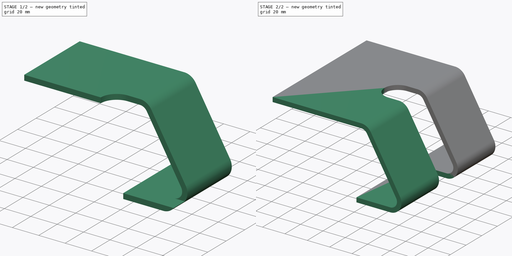
[diagram: build sequence overview — one tinted view per stage of 2, left to right]
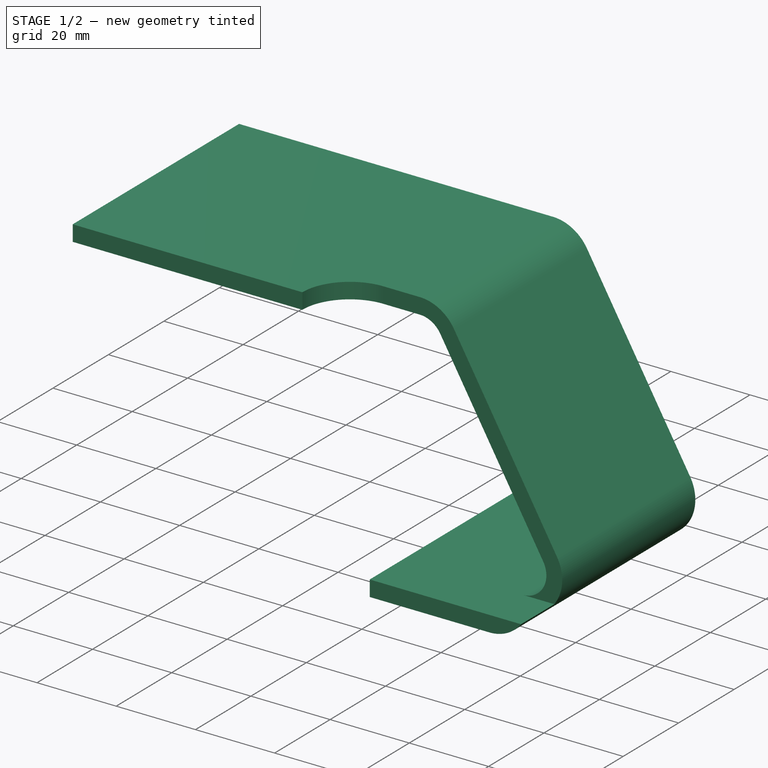
[diagram: stage 1 of 2 — iso view after this stage's code; geometry added in this stage tinted green]
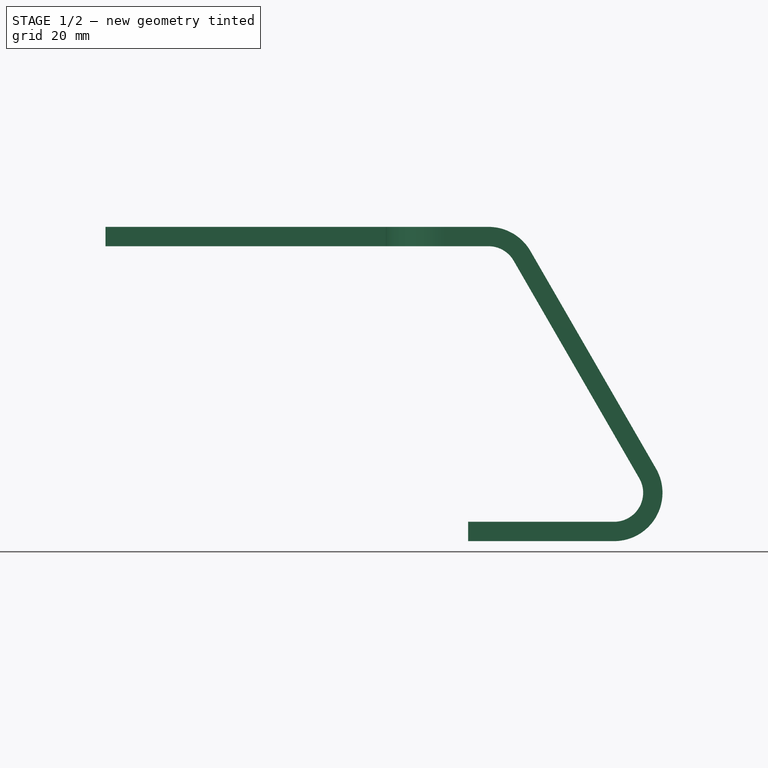
[diagram: stage 1 of 2 — front view after this stage's code; geometry added in this stage tinted green]
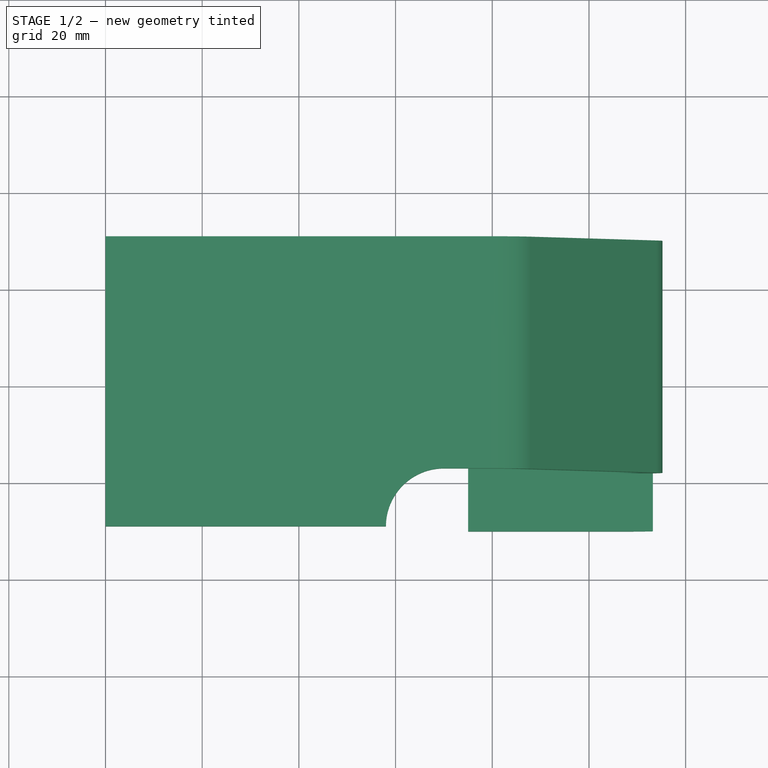
[diagram: stage 1 of 2 — top view after this stage's code; geometry added in this stage tinted green]
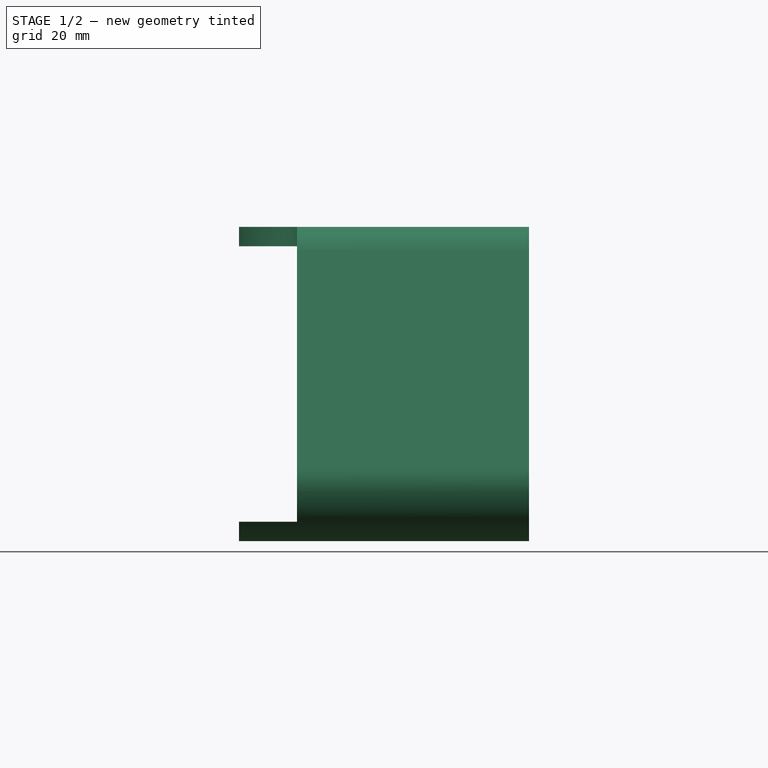
[diagram: stage 1 of 2 — right view after this stage's code; geometry added in this stage tinted green]
FCSTD DOCUMENT  (FreeCAD 1.1R42180 (Git))
Label: 23-T-81_Flared_Bracket
License: Creative Commons Attribution-NonCommercial-ShareAlike 4.0
LicenseURL: https://creativecommons.org/licenses/by-nc-sa/4.0/
objects: Sketcher::SketchObject×5, PartDesign::Pocket×2, App::Point×1, PartDesign::Pad×1, PartDesign::Mirrored×1, PartDesign::Body×1
note: 22 computed .brp shape members not serialized (recipe doc carries the construction recipe); baked Part::Feature solids carry a one-line shape summary decoded from their .brp

FEATURE [App::Point] Origin001  label="Origine"
  Role = Origin
FEATURE [Sketcher::SketchObject] Sketch
  ArcFitTolerance = 1e-06
  AttachmentSupport = -> [Origin]
  ExternalTypes = [0]
  FullyConstrained = true
  MakeInternals = false
  MapMode = 5
  Placement = pos=(0,0,0) rot=(1,0,0;1.5708rad)
  expr: Constraints[17] = 170 / 2
  sketch-geometry (7):
    g0: LineSegment StartX=0 StartY=65 StartZ=0 EndX=79.2265 EndY=65 EndZ=0
    g1: LineSegment StartX=87.8868 StartY=60 StartZ=0 EndX=113.868 EndY=15 EndZ=0
    g2: ArcOfCircle CenterX=105.207 CenterY=10 CenterZ=0 NormalX=0 NormalY=0 NormalZ=1 AngleXU=0 Radius=10 StartAngle=4.71239 EndAngle=6.80678
    g3: LineSegment StartX=0 StartY=65 StartZ=0 EndX=0 EndY=0 EndZ=0
    g4: LineSegment StartX=0 StartY=0 StartZ=0 EndX=105.207 EndY=0 EndZ=0
    g5: ArcOfCircle CenterX=79.2265 CenterY=55 CenterZ=0 NormalX=0 NormalY=0 NormalZ=1 AngleXU=0 Radius=10 StartAngle=0.523599 EndAngle=1.5708
    g6: LineSegment [constr] StartX=0 StartY=65 StartZ=0 EndX=85 EndY=65 EndZ=0
  constraints (18):
    c: PointOnObject(g0,g-2)
    c: Horizontal(g0)
    c: Tangent(g1,g2) = 1.5708
    c: Coincident(g0,g3)
    c: Coincident(g3,g-1)
    c: Coincident(g3,g4)
    c: Horizontal(g4)
    c: Tangent(g4,g2) = -1.5708
    c: Angle(g1,g-1) = 1.0472
    c: Radius(g2) = 10
    c: Tangent(g1,g5) = 1.5708
    c: Tangent(g0,g5) = 1.5708
    c: Equal(g2,g5)
    c: DistanceY(g-1,g0) = 65
    c: Coincident(g6,g0)
    c: PointOnObject(g6,g1)
    c: Horizontal(g6)
    c: DistanceX(g6,g6) = 85
FEATURE [Sketcher::SketchObject] Sketch001
  ArcFitTolerance = 1e-06
  ExternalTypes = [0,0,0,0]
  FullyConstrained = true
  MakeInternals = false
  MapMode = 5
  Placement = pos=(0,-50,0) rot=(1,0,0;1.5708rad)
  expr: Constraints[18] = 150 / 2
  sketch-geometry (8):
    g0: LineSegment StartX=0 StartY=65 StartZ=0 EndX=0 EndY=61 EndZ=0
    g1: LineSegment StartX=0 StartY=61 StartZ=0 EndX=79.2265 EndY=61 EndZ=0
    g2: ArcOfCircle CenterX=79.2265 CenterY=55 CenterZ=0 NormalX=0 NormalY=0 NormalZ=1 AngleXU=0 Radius=6 StartAngle=0.523599 EndAngle=1.5708
    g3: LineSegment StartX=84.4226 StartY=58 StartZ=0 EndX=110.403 EndY=13 EndZ=0
    g4: ArcOfCircle CenterX=105.207 CenterY=10 CenterZ=0 NormalX=0 NormalY=0 NormalZ=1 AngleXU=0 Radius=6 StartAngle=4.71239 EndAngle=6.80678
    g5: LineSegment StartX=105.207 StartY=4 StartZ=0 EndX=75 EndY=4 EndZ=0
    g6: LineSegment StartX=75 StartY=4 StartZ=0 EndX=75 EndY=0 EndZ=0
    g7: LineSegment StartX=75 StartY=0 StartZ=0 EndX=105.207 EndY=1.07e-14 EndZ=0
  constraints (19):
    c: Coincident(g-3,g0)
    c: Coincident(g0,g1)
    c: Horizontal(g1)
    c: Tangent(g1,g2) = 1.5708
    c: Tangent(g3,g4) = 1.5708
    c: Tangent(g4,g5) = 1.5708
    c: Coincident(g5,g6)
    c: PointOnObject(g6,g-1)
    c: Vertical(g6)
    c: Coincident(g6,g7)
    c: Coincident(g7,g-6)
    c: Parallel(g5,g7)
    c: Vertical(g0)
    c: Distance(g0,g0) = 4
    c: Coincident(g-4,g2)
    c: Tangent(g2,g3) = 1.5708
    c: Parallel(g3,g-5)
    c: Coincident(g-6,g4)
    c: Distance(g6,g-2) = 75
FEATURE [PartDesign::Pad] Pad
  Direction = (0,-1,0)
  Length = 60
  Length2 = 10
  Placement = pos=(0,-50,0) rot=(1,0,0;1.5708rad)
  Profile = -> Sketch001
  ReferenceAxis = -> Sketch001 [N_Axis]
  Refine = true
  Reversed = true
  Suppressed = false
  Type = 0
FEATURE [Sketcher::SketchObject] Sketch002
  ArcFitTolerance = 1e-06
  AttachmentSupport = -> [Pad]
  ExternalGeometry = -> [Sketch]
  ExternalTypes = [0]
  FullyConstrained = true
  MakeInternals = false
  MapMode = 5
  Placement = pos=(0,-50,65) rot=(0,0,1;3.14159rad)
  expr: Constraints[10] = 140 / 2
  sketch-geometry (4):
    g0: ArcOfCircle CenterX=-70 CenterY=0 CenterZ=0 NormalX=0 NormalY=0 NormalZ=1 AngleXU=0 Radius=12 StartAngle=4.71239 EndAngle=6.28319
    g1: LineSegment StartX=-70 StartY=-12 StartZ=0 EndX=-125.207 EndY=-12 EndZ=0
    g2: LineSegment StartX=-125.207 StartY=-12 StartZ=0 EndX=-125.207 EndY=-3.6e-15 EndZ=0
    g3: LineSegment StartX=-125.207 StartY=-3.6e-15 StartZ=0 EndX=-58 EndY=-3.6e-15 EndZ=0
  constraints (12):
    c: PointOnObject(g0,g-1)
    c: Horizontal(g1)
    c: Coincident(g1,g2)
    c: Coincident(g2,g3)
    c: Coincident(g3,g0)
    c: Horizontal(g3)
    c: Radius(g0) = 12
    c: PointOnObject(g0,g-1)
    c: Vertical(g2)
    c: Tangent(g1,g0) = 1.5708
    c: DistanceX(g0,g-1) = 70
    c: DistanceX(g1,g-3) = 10
FEATURE [PartDesign::Pocket] Pocket
  BaseFeature = -> Pad
  Direction = (0,0,-1)
  Length = 0
  Length2 = 5
  Placement = pos=(0,-50,0) rot=(1,0,0;1.5708rad)
  Profile = -> Sketch002
  ReferenceAxis = -> Sketch002 [N_Axis]
  Refine = true
  Suppressed = false
  Type = 3
  UpToFace = -> Pad [Face6]
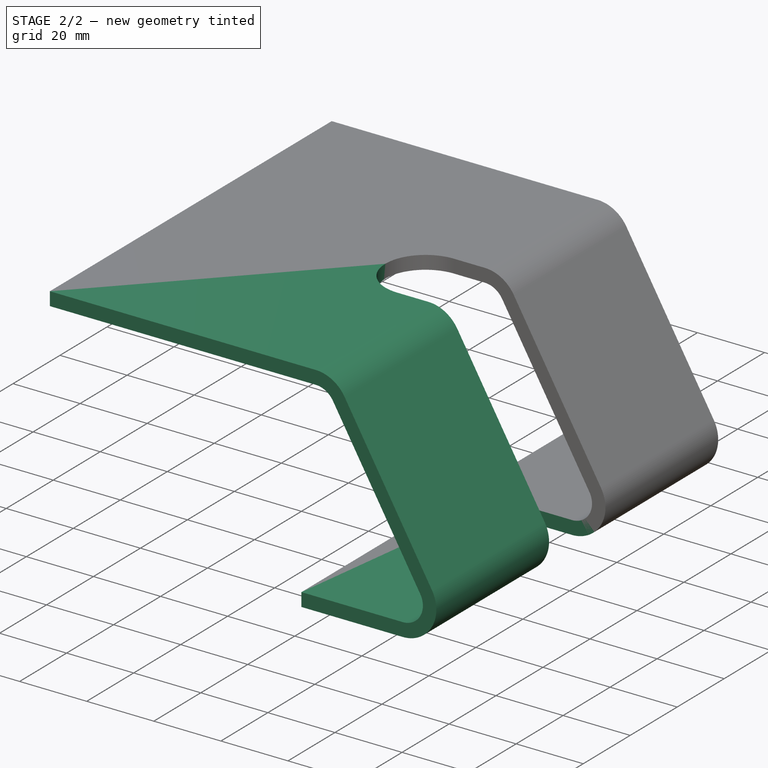
[diagram: stage 2 of 2 — iso view after this stage's code; geometry added in this stage tinted green]
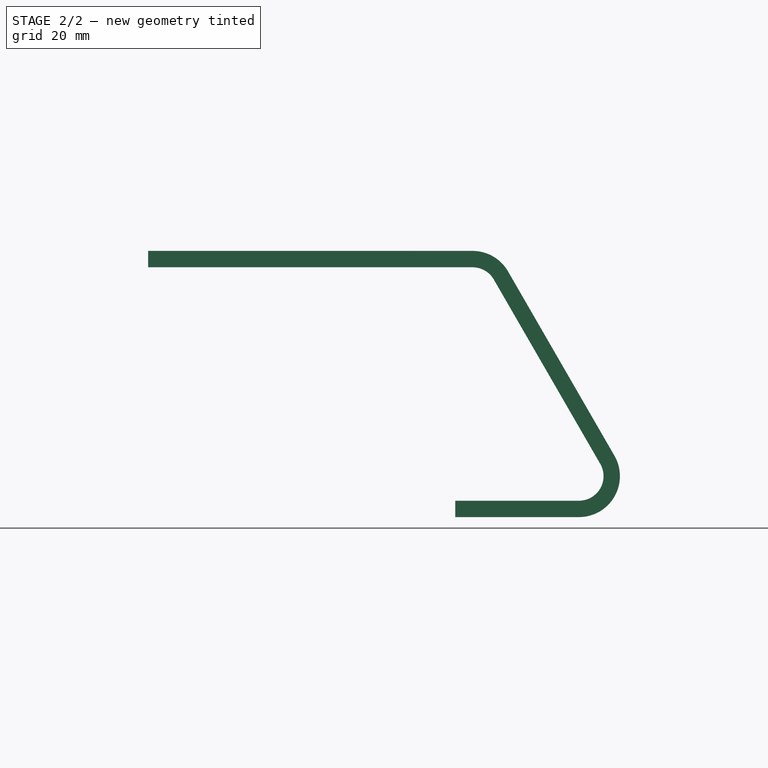
[diagram: stage 2 of 2 — front view after this stage's code; geometry added in this stage tinted green]
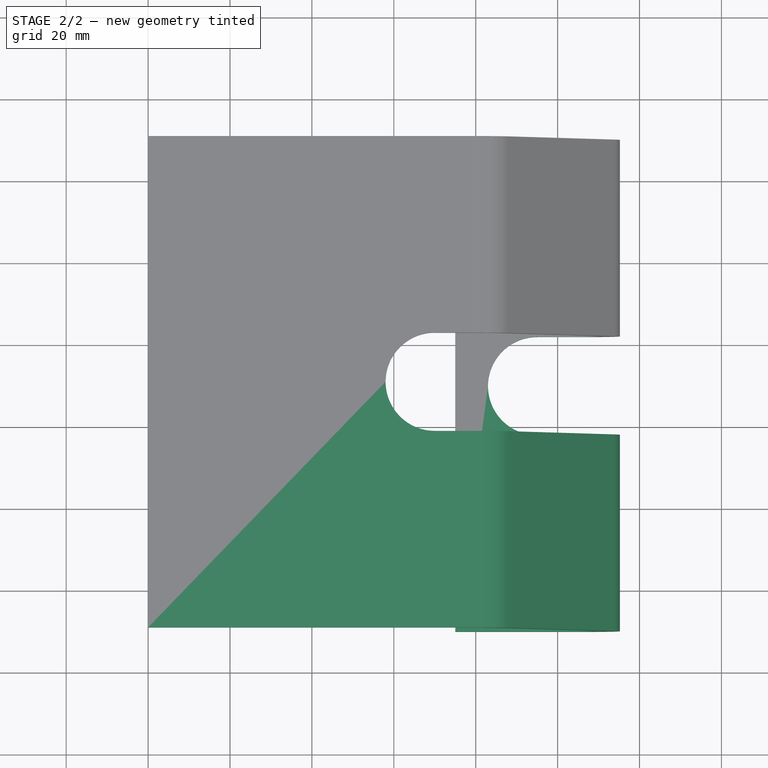
[diagram: stage 2 of 2 — top view after this stage's code; geometry added in this stage tinted green]
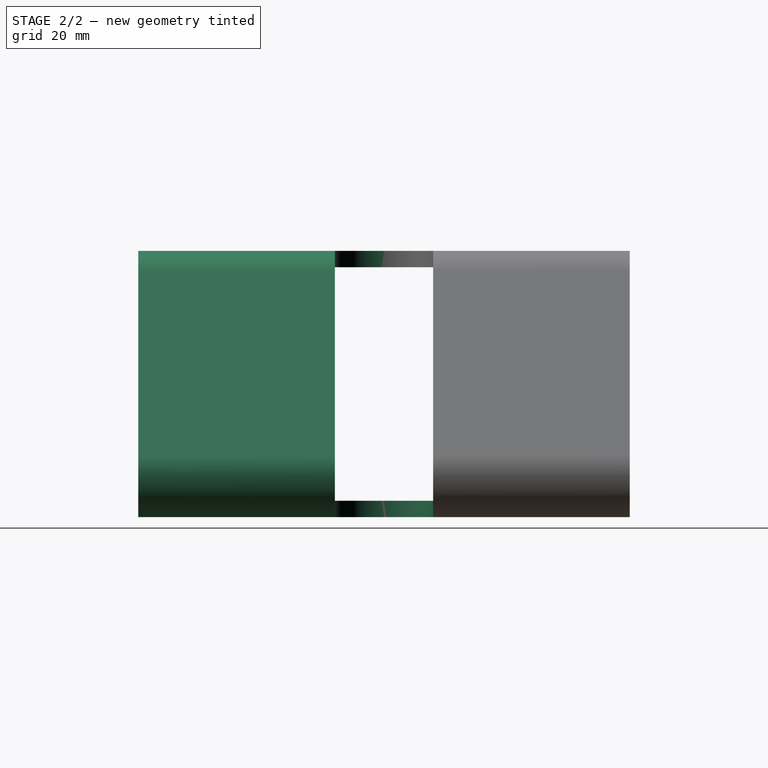
[diagram: stage 2 of 2 — right view after this stage's code; geometry added in this stage tinted green]
FEATURE [Sketcher::SketchObject] Sketch003
  ArcFitTolerance = 1e-06
  AttachmentSupport = -> [Pocket]
  ExternalGeometry = -> [Pocket]
  ExternalTypes = [0,0]
  FullyConstrained = true
  MakeInternals = false
  MapMode = 5
  Placement = pos=(-1.4e-15,-50,4) rot=(0,0,1;3.14159rad)
  expr: Constraints[7] = 190 / 2
  sketch-geometry (4):
    g0: LineSegment StartX=-113.207 StartY=-1.78e-14 StartZ=0 EndX=-83 EndY=-1.78e-14 EndZ=0
    g1: ArcOfCircle CenterX=-95 CenterY=-1.42e-14 CenterZ=0 NormalX=0 NormalY=0 NormalZ=1 AngleXU=0 Radius=12 StartAngle=4.71239 EndAngle=6.28319
    g2: LineSegment StartX=-95 StartY=-12 StartZ=0 EndX=-113.207 EndY=-12 EndZ=0
    g3: LineSegment StartX=-113.207 StartY=-12 StartZ=0 EndX=-113.207 EndY=-1.78e-14 EndZ=0
  constraints (11):
    c: Coincident(g-3,g0)
    c: PointOnObject(g1,g-4)
    c: Tangent(g1,g2) = 1.5708
    c: Coincident(g2,g3)
    c: Coincident(g3,g0)
    c: Vertical(g3)
    c: Horizontal(g2)
    c: Distance(g1,g-2) = 95
    c: Coincident(g0,g1)
    c: Horizontal(g0)
    c: Perpendicular(g1,g0)
FEATURE [PartDesign::Pocket] Pocket001
  BaseFeature = -> Pocket
  Direction = (0,0,-1)
  Length = 5
  Length2 = 5
  Placement = pos=(0,-50,0) rot=(1,0,0;1.5708rad)
  Profile = -> Sketch003
  ReferenceAxis = -> Sketch003 [N_Axis]
  Refine = true
  Suppressed = false
  Type = 1
FEATURE [Sketcher::SketchObject] Sketch004
  ArcFitTolerance = 1e-06
  AttachmentSupport = -> [Origin]
  ExternalTypes = [0]
  FullyConstrained = true
  MakeInternals = false
  MapMode = 5
  Placement = pos=(0,0,0) rot=(0.57735,0.57735,0.57735;2.0944rad)
FEATURE [PartDesign::Mirrored] Mirrored
  BaseFeature = -> Pocket001
  MirrorPlane = -> Pocket001 [Face4]
  Placement = pos=(0,-50,0) rot=(1,0,0;1.5708rad)
  Refine = true
  Suppressed = false
  TransformMode = 1
FEATURE [PartDesign::Body] Body  label="Corps"
  AllowCompound = true
  Group = -> [Sketch,Sketch001,Pad,Sketch002,Pocket,Sketch003,Pocket001,Sketch004,Mirrored]
  Origin = -> Origin
  Tip = -> Mirrored
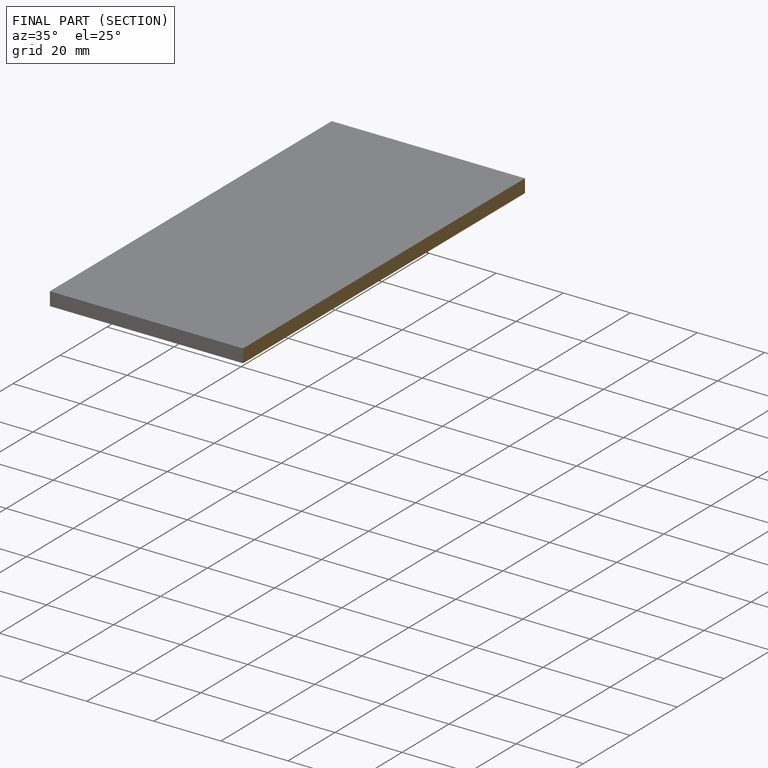
[diagram: finished part — half-section view (interior)]
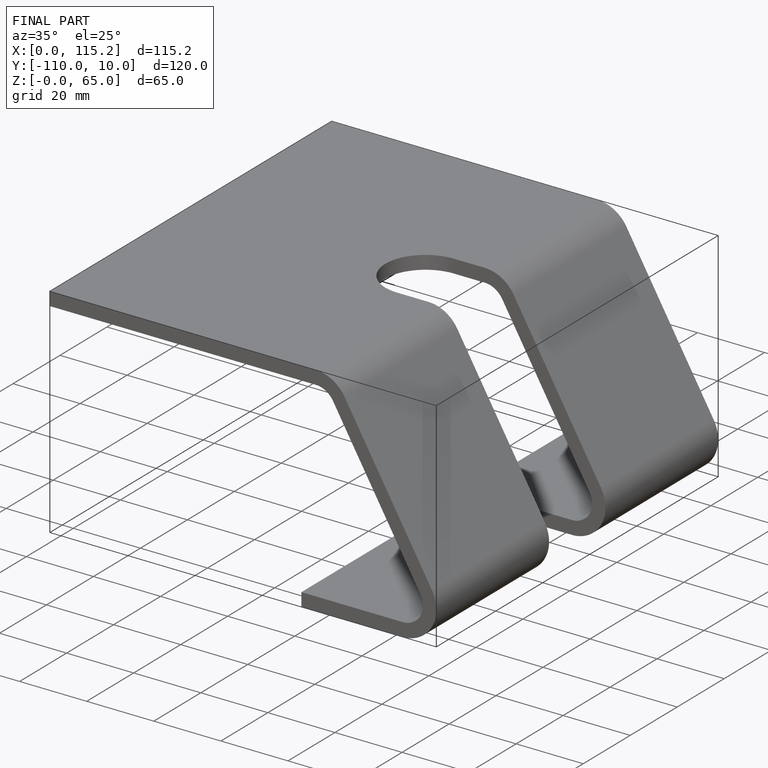
[diagram: finished part — iso view with bounding-box wireframe]
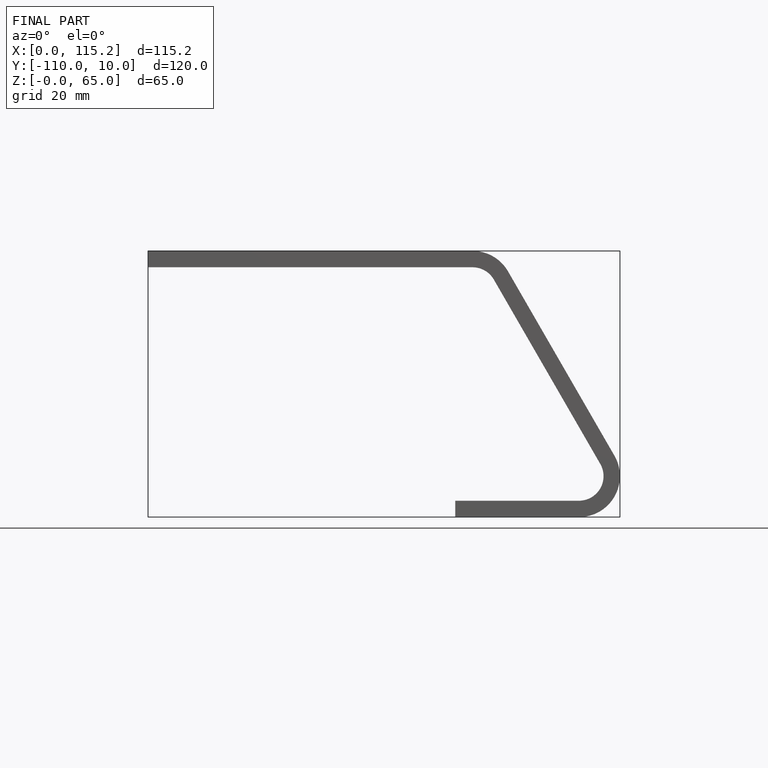
[diagram: finished part — front view with bounding-box wireframe]
